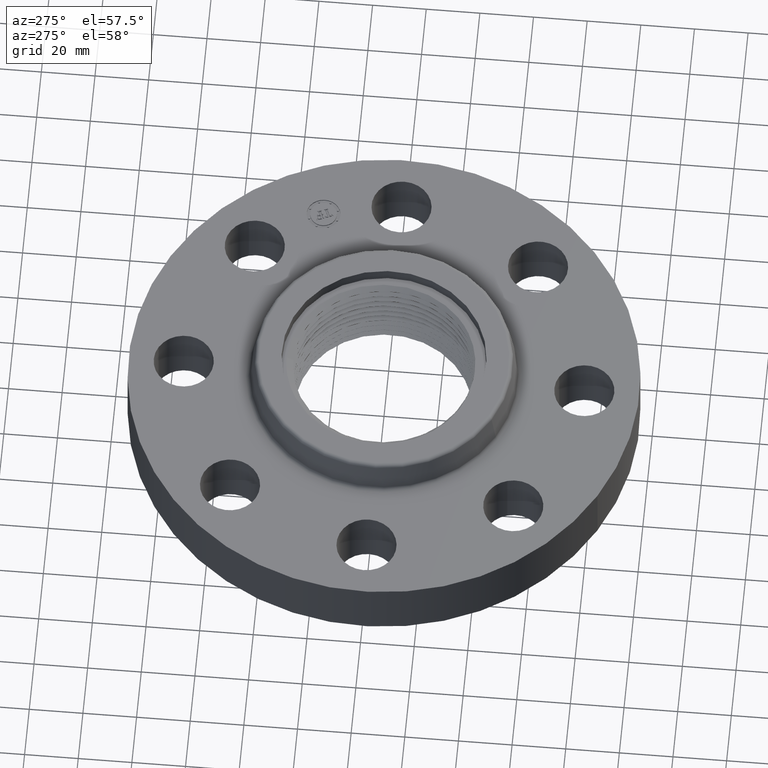
[diagram: clean part render]
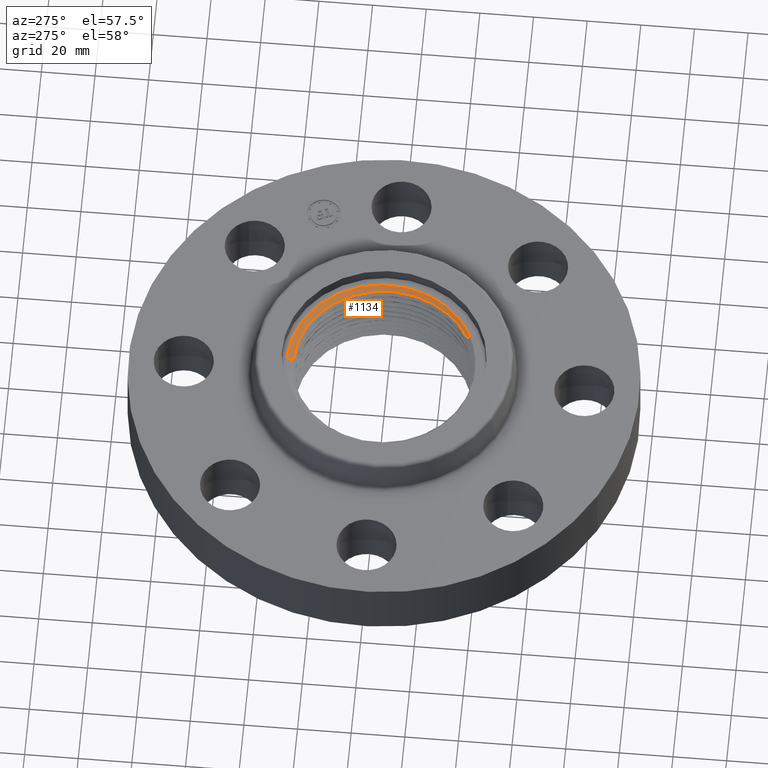
[diagram: same view with one face highlighted and labeled with its STEP entity id]
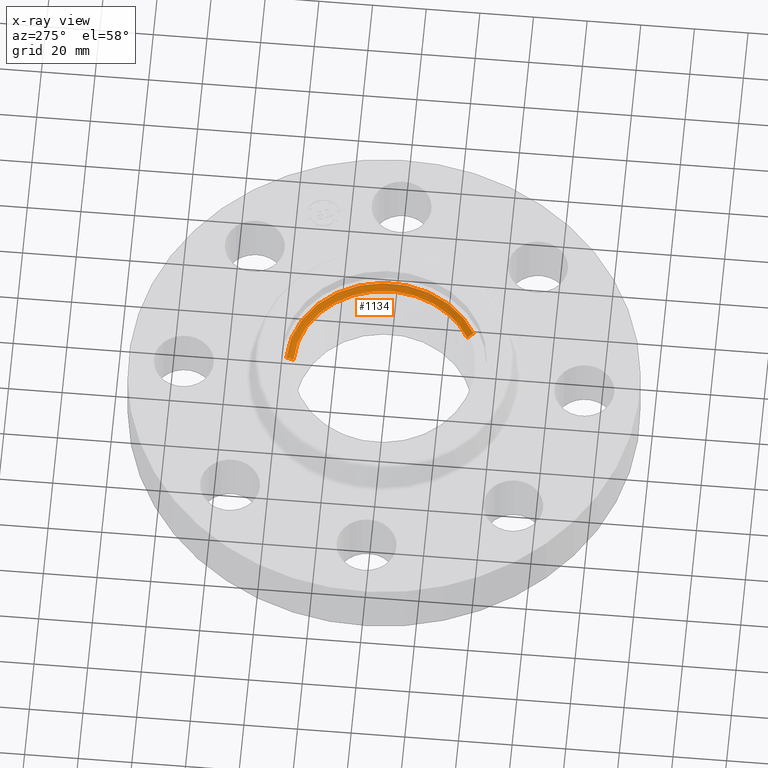
[diagram: x-ray of the same camera — body ghosted, the highlighted face saturated]
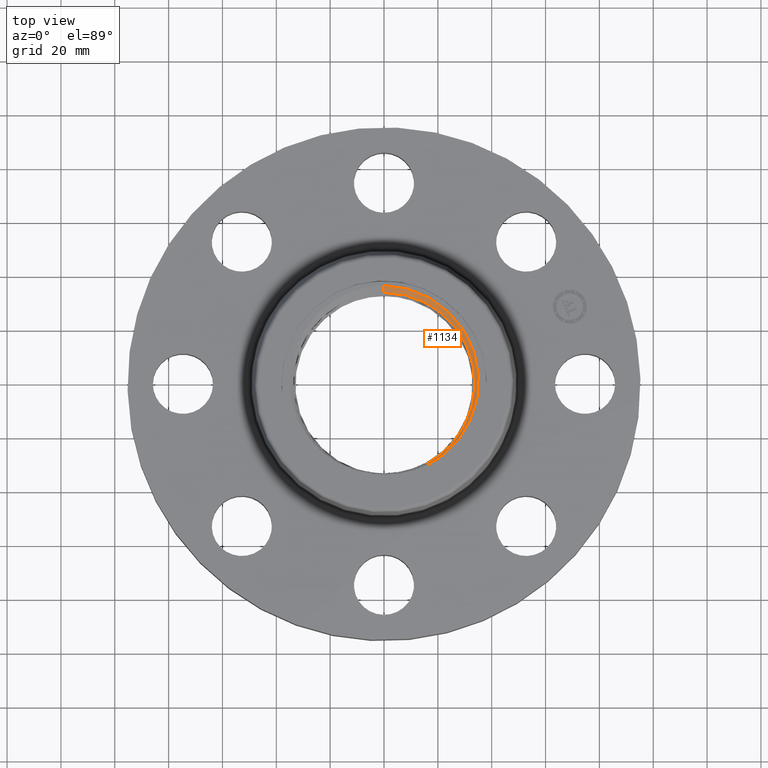
[diagram: same view with one face highlighted and labeled with its STEP entity id]
A machine part, auxiliary view. The second image highlights one B-rep face of the part: STEP entity #1134.
The next image is the same camera in x-ray: the body ghosted, the highlighted face saturated — about 0% of this face is hidden behind the body in this view.
A second angle (top view) of the same face is appended — the face is thin or edge-on in the first view.
In plain terms, the highlighted face is a freeform B-spline surface patch.
Its self-contained STEP definition (entity closure, byte-faithful):
#1048=CARTESIAN_POINT('Control Point',(1.69232159068E-006,1.32917223466,1.18909219792)) ;
#1049=CARTESIAN_POINT('Control Point',(1.82206701031E-006,1.43107560331,1.24843824631)) ;
#1050=CARTESIAN_POINT('Control Point',(0.351142874252,1.32900754784,1.18383649533)) ;
#1051=CARTESIAN_POINT('Control Point',(0.378063986555,1.43091088222,1.24318254372)) ;
#1052=CARTESIAN_POINT('Control Point',(0.702227686475,1.21288706919,1.17857998669)) ;
#1053=CARTESIAN_POINT('Control Point',(0.756073775925,1.30590035103,1.23792604139)) ;
#1054=CARTESIAN_POINT('Control Point',(1.00081804075,0.980897032347,1.17334046928)) ;
#1055=CARTESIAN_POINT('Control Point',(1.07757289736,1.05613118428,1.23268651767)) ;
#1056=CARTESIAN_POINT('Control Point',(1.3993453756,0.357836790821,1.16282437439)) ;
#1057=CARTESIAN_POINT('Control Point',(1.5066931552,0.385295425277,1.22217042277)) ;
#1058=CARTESIAN_POINT('Control Point',(1.34820088651,-0.379998616695,1.15230515056)) ;
#1059=CARTESIAN_POINT('Control Point',(1.45165330856,-0.409152545928,1.21165119894)) ;
#1060=CARTESIAN_POINT('Control Point',(1.19728528433,-0.726725306915,1.14706251834)) ;
#1061=CARTESIAN_POINT('Control Point',(1.28917097732,-0.782492641966,1.20640854779)) ;
#1062=CARTESIAN_POINT('Control Point',(0.944671334714,-0.996823596293,1.14180134401)) ;
#1063=CARTESIAN_POINT('Control Point',(1.0171790329,-1.07333109222,1.20114739238)) ;
#1064=CARTESIAN_POINT('Control Point',(0.636451224239,-1.16501744944,1.13653938185)) ;
#1065=CARTESIAN_POINT('Control Point',(0.685305246899,-1.25444664496,1.19588543022)) ;
#1067=CARTESIAN_POINT('Control Point',(0.637086326534,-1.16618002898,1.13731088048)) ;
#1068=CARTESIAN_POINT('Control Point',(0.685305246899,-1.25444664496,1.19588543022)) ;
#1069=CARTESIAN_POINT('Vertex',(0.685305246899,-1.25444664496,1.19588543022)) ;
#1071=CARTESIAN_POINT('Vertex',(0.637086326534,-1.16618002898,1.13731088048)) ;
#1075=CARTESIAN_POINT('Control Point',(1.82206701031E-006,1.43107560331,1.24843824631)) ;
#1076=CARTESIAN_POINT('Control Point',(0.378063986555,1.43091088222,1.24318254372)) ;
#1077=CARTESIAN_POINT('Control Point',(0.756073775925,1.30590035103,1.23792604139)) ;
#1078=CARTESIAN_POINT('Control Point',(1.07757289736,1.05613118428,1.23268651767)) ;
#1079=CARTESIAN_POINT('Control Point',(1.5066931552,0.385295425277,1.22217042277)) ;
#1080=CARTESIAN_POINT('Control Point',(1.45165330856,-0.409152545928,1.21165119894)) ;
#1081=CARTESIAN_POINT('Control Point',(1.28917097732,-0.782492641966,1.20640854779)) ;
#1082=CARTESIAN_POINT('Control Point',(1.0171790329,-1.07333109222,1.20114739238)) ;
#1083=CARTESIAN_POINT('Control Point',(0.685305246899,-1.25444664496,1.19588543022)) ;
#1084=CARTESIAN_POINT('Vertex',(1.8220670101E-006,1.43107560331,1.24843824631)) ;
#1088=CARTESIAN_POINT('Control Point',(1.69400828111E-006,1.33049697845,1.18986369655)) ;
#1089=CARTESIAN_POINT('Control Point',(1.82206701028E-006,1.43107560331,1.24843824631)) ;
#1090=CARTESIAN_POINT('Vertex',(1.69400828007E-006,1.33049697845,1.18986369655)) ;
#1094=CARTESIAN_POINT('Control Point',(1.69400828116E-006,1.33049697845,1.18986369655)) ;
#1095=CARTESIAN_POINT('Control Point',(0.0699273755858,1.33046421556,1.18881812661)) ;
#1096=CARTESIAN_POINT('Control Point',(0.139849813202,1.32583767908,1.18777254036)) ;
#1097=CARTESIAN_POINT('Control Point',(0.209823454783,1.31659939369,1.18671999777)) ;
#1098=CARTESIAN_POINT('Control Point',(0.348550600176,1.28871164856,1.18460814153)) ;
#1099=CARTESIAN_POINT('Control Point',(0.482349057694,1.24275637189,1.18249681449)) ;
#1100=CARTESIAN_POINT('Control Point',(0.547384900895,1.21541689063,1.18144480137)) ;
#1101=CARTESIAN_POINT('Control Point',(0.672770016442,1.15281024881,1.1793537417)) ;
#1102=CARTESIAN_POINT('Control Point',(0.78887247467,1.07434468575,1.17726269022)) ;
#1103=CARTESIAN_POINT('Control Point',(0.844565695587,1.03114512585,1.17621150612)) ;
#1104=CARTESIAN_POINT('Control Point',(0.950105386953,0.937357312524,1.17410398929)) ;
#1105=CARTESIAN_POINT('Control Point',(1.04236464586,0.830468667826,1.17199610407)) ;
#1106=CARTESIAN_POINT('Control Point',(1.08475975399,0.774150869502,1.17094455109)) ;
#1107=CARTESIAN_POINT('Control Point',(1.16175260552,0.656595772946,1.16884698167)) ;
#1108=CARTESIAN_POINT('Control Point',(1.22266209911,0.52992997319,1.1667493852)) ;
#1109=CARTESIAN_POINT('Control Point',(1.2489394245,0.464535515738,1.16569840732)) ;
#1110=CARTESIAN_POINT('Control Point',(1.29259257016,0.330982674085,1.16360081817)) ;
#1111=CARTESIAN_POINT('Control Point',(1.31834104655,0.192863566323,1.16150316532)) ;
#1112=CARTESIAN_POINT('Control Point',(1.32672530255,0.122783854539,1.16044999737)) ;
#1113=CARTESIAN_POINT('Control Point',(1.33406817493,-0.0185254084902,1.15833688127)) ;
#1114=CARTESIAN_POINT('Control Point',(1.32267495294,-0.159533821426,1.15622429604)) ;
#1115=CARTESIAN_POINT('Control Point',(1.31228819676,-0.229312192897,1.1551716592)) ;
#1116=CARTESIAN_POINT('Control Point',(1.28266872705,-0.366288863646,1.15307937465)) ;
#1117=CARTESIAN_POINT('Control Point',(1.2353764416,-0.498193983306,1.15098709718)) ;
#1118=CARTESIAN_POINT('Control Point',(1.20730086631,-0.562842939215,1.14993528961)) ;
#1119=CARTESIAN_POINT('Control Point',(1.14253900361,-0.688301873643,1.14782651373)) ;
#1120=CARTESIAN_POINT('Control Point',(1.06178926785,-0.804128033393,1.14571736763)) ;
#1121=CARTESIAN_POINT('Control Point',(1.0177045355,-0.859131362392,1.14466518937)) ;
#1122=CARTESIAN_POINT('Control Point',(0.922828306905,-0.96280474404,1.14256619084)) ;
#1123=CARTESIAN_POINT('Control Point',(0.815138784683,-1.05313620051,1.14046716629)) ;
#1124=CARTESIAN_POINT('Control Point',(0.758256213091,-1.09476442559,1.13941537443)) ;
#1125=CARTESIAN_POINT('Control Point',(0.698784033522,-1.13251188791,1.1383631399)) ;
#1126=CARTESIAN_POINT('Control Point',(0.637086886502,-1.16617972341,1.13731089003)) ;
#1129=ORIENTED_EDGE('',*,*,#1073,.F.) ;
#1130=ORIENTED_EDGE('',*,*,#1086,.F.) ;
#1131=ORIENTED_EDGE('',*,*,#1092,.T.) ;
#1132=ORIENTED_EDGE('',*,*,#1127,.T.) ;
#1134=ADVANCED_FACE('PartBody',(#1133),#1047,.T.) ;
#1066=B_SPLINE_CURVE_WITH_KNOTS('',1,(#1067,#1068),.UNSPECIFIED.,.F.,.U.,(2,2),(-1.45870574757,1.49764450472),.UNSPECIFIED.) ;
#1074=B_SPLINE_CURVE_WITH_KNOTS('',5,(#1075,#1076,#1077,#1078,#1079,#1080,#1081,#1082,#1083),.UNSPECIFIED.,.F.,.U.,(6,3,6),(0.,46.372326102,92.7447587979),.UNSPECIFIED.) ;
#1087=B_SPLINE_CURVE_WITH_KNOTS('',1,(#1088,#1089),.UNSPECIFIED.,.F.,.U.,(2,2),(-1.4587057476,1.49764450472),.UNSPECIFIED.) ;
#1093=B_SPLINE_CURVE_WITH_KNOTS('',5,(#1094,#1095,#1096,#1097,#1098,#1099,#1100,#1101,#1102,#1103,#1104,#1105,#1106,#1107,#1108,#1109,#1110,#1111,#1112,#1113,#1114,#1115,#1116,#1117,#1118,#1119,#1120,#1121,#1122,#1123,#1124,#1125,#1126),.UNSPECIFIED.,.F.,.U.,(6,3,3,3,3,3,3,3,3,3,6),(0.,12.9231260235,25.8462520471,38.7849966497,51.7237412523,64.7154282575,77.6422600519,90.5690918464,103.511511901,116.453931955,129.451754569),.UNSPECIFIED.) ;
#1047=B_SPLINE_SURFACE_WITH_KNOTS('',5,1,((#1048,#1049),(#1050,#1051),(#1052,#1053),(#1054,#1055),(#1056,#1057),(#1058,#1059),(#1060,#1061),(#1062,#1063),(#1064,#1065)),.UNSPECIFIED.,.F.,.F.,.U.,(6,3,6),(2,2),(0.,46.372326102,92.7447587979),(-1.49764450472,1.49764450472),.UNSPECIFIED.) ;
#1073=EDGE_CURVE('',#1070,#1072,#1066,.F.) ;
#1086=EDGE_CURVE('',#1085,#1070,#1074,.T.) ;
#1092=EDGE_CURVE('',#1085,#1091,#1087,.F.) ;
#1127=EDGE_CURVE('',#1091,#1072,#1093,.T.) ;
#1128=EDGE_LOOP('',(#1129,#1130,#1131,#1132)) ;
#1133=FACE_OUTER_BOUND('',#1128,.T.) ;
#1070=VERTEX_POINT('',#1069) ;
#1072=VERTEX_POINT('',#1071) ;
#1085=VERTEX_POINT('',#1084) ;
#1091=VERTEX_POINT('',#1090) ;